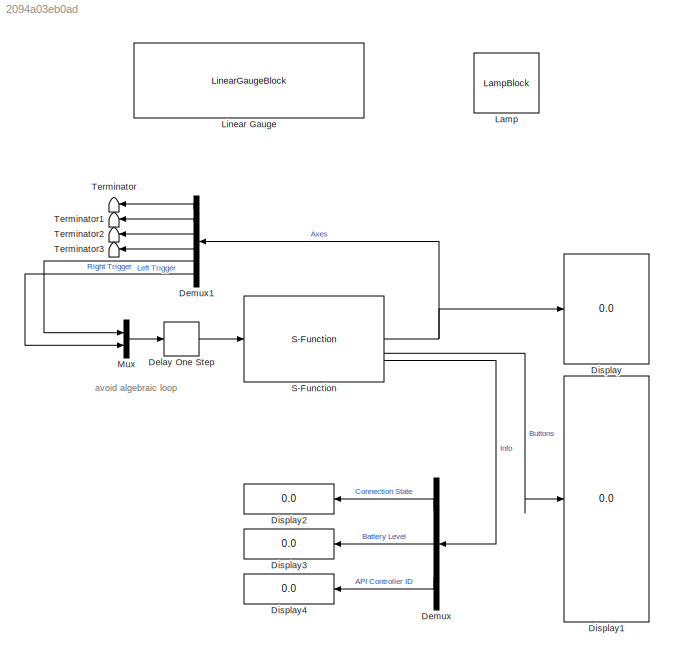
MODEL slx_2094a03eb0ad
KIND model
CONFIG AbsTol = auto
CONFIG EnableMultiTasking = off
CONFIG FixedStep = 0.01
CONFIG MaxStep = auto
CONFIG MinStep = auto
CONFIG RelTol = 1e-3
CONFIG SampleTimeConstraint = Unconstrained
CONFIG SolverName = FixedStepAuto
CONFIG StartTime = 0.0
CONFIG StopTime = 100
BLOCK [Delay] Delay One Step
  DelayLength = 1
  InputPortMap = u0
BLOCK [Demux] Demux
  Outputs = 3
BLOCK [Demux] Demux1
  Outputs = 6
BLOCK [Display] Display
  Decimation = 1
BLOCK [Display] Display1
  Decimation = 1
BLOCK [Display] Display2
  Decimation = 1
BLOCK [Display] Display3
  Decimation = 1
BLOCK [Display] Display4
  Decimation = 1
BLOCK [LampBlock] Lamp
BLOCK [LinearGaugeBlock] Linear Gauge
  TickInterval = 25
BLOCK [Mux] Mux
  DisplayOption = bar
  Inputs = 2
BLOCK [S-Function] S-Function
  EnableBusSupport = off
  FunctionName = XInput_Controller_SFun_Feedback
  Parameters = 1
  SFcnIsStateOwnerBlock = off
  SFunctionDeploymentMode = off
  UserDataPersistent = on
BLOCK [Terminator] Terminator
BLOCK [Terminator] Terminator1
BLOCK [Terminator] Terminator2
BLOCK [Terminator] Terminator3
  UserDataPersistent = on
ANNOTATION (root): avoid algebraic loop
LINE Delay One Step:1 -> S-Function:1
LINE Demux1:1 -> Terminator:1
LINE Demux1:2 -> Terminator1:1
LINE Demux1:3 -> Terminator2:1
LINE Demux1:4 -> Terminator3:1
LINE Demux1:5 -> Mux:1
LINE Demux1:6 -> Mux:2
LINE Demux:1 -> Display2:1
LINE Demux:2 -> Display3:1
LINE Demux:3 -> Display4:1
LINE Mux:1 -> Delay One Step:1
NET S-Function:1 -> Demux1:1, Display:1
LINE S-Function:2 -> Display1:1
LINE S-Function:3 -> Demux:1
note: NET lines group one-source signal fan-out (src -> all destinations, sorted); 1:1 wires keep LINE
